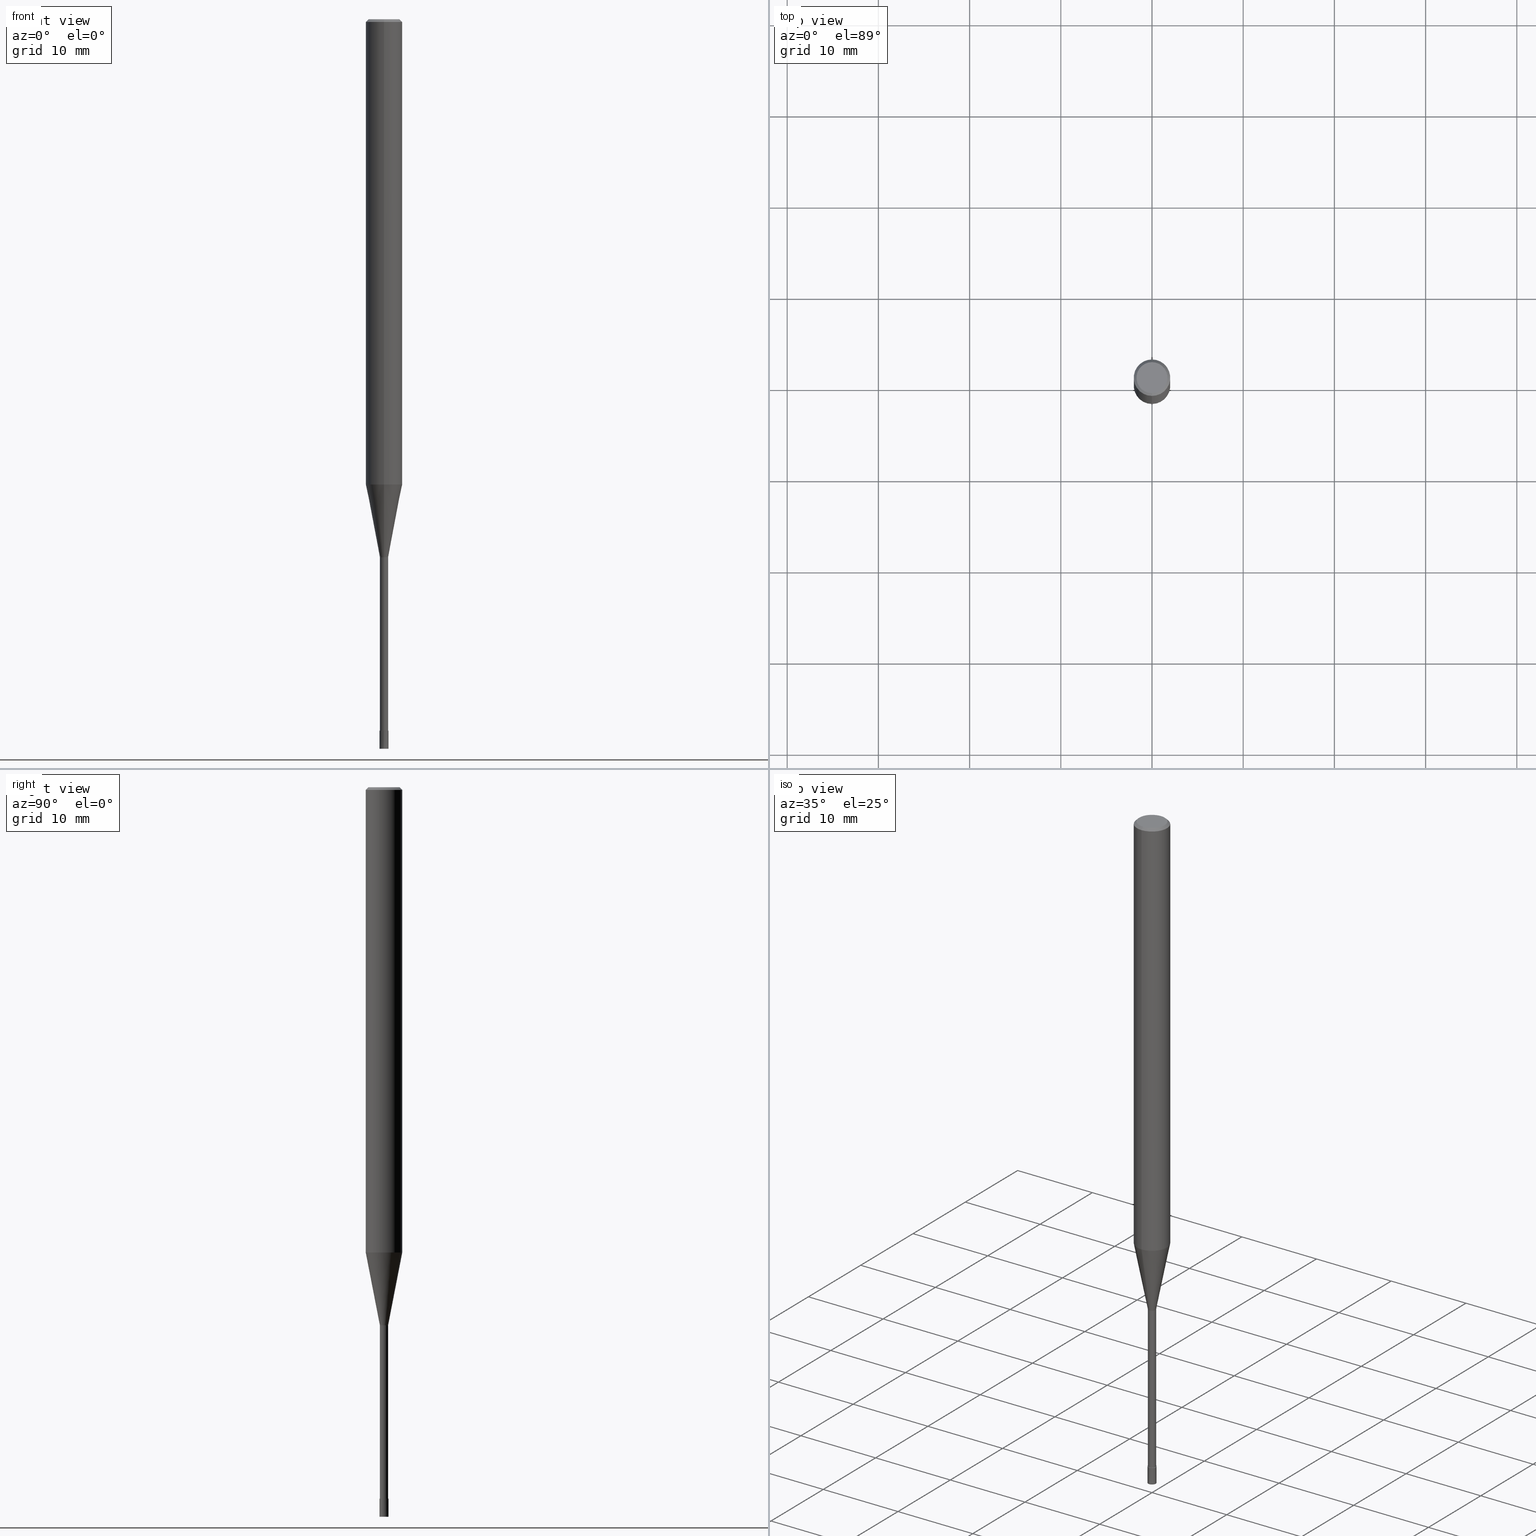
[diagram: canonical four-view strip — front | top / right | iso, engineering-drawing reading convention]
A machine part, canonical four-view strip (front | top / right | iso — engineering-drawing reading convention). The complete STEP part file that produces these views, byte-faithful:
ISO-10303-21;
HEADER;
FILE_DESCRIPTION(('no description'),'unknown implementation level');
FILE_NAME('CPRL2010-21-Huellk.stp','  ',('CIMSOURCE GmbH'),('CADClick - KiM GmbH - www.kimweb.de'),'unknown preprocess','ACIS','unknown authorization');
FILE_SCHEMA(('automotive_design'));
ENDSEC;
DATA;
#1=MECHANICAL_DESIGN_GEOMETRIC_PRESENTATION_REPRESENTATION(' ',(#14,#15,#16,#17,#18,#19,#20,#21,#22,#23,#24,#25,#26,#27,#28,#29,#30,#31,#32,#33,#34,#35,#36,#37,#38,#39,#40,#41,#42,#43,#44,#45,#46,#47,#48,#49,#50,#51,#52,#53,#54,#55,#56,#57,#58,#59,#60,#61,#62,#63,#64,#65,#66,#67,#68,#69,#70,#71,#72),#10);
#2=PRODUCT_DEFINITION_CONTEXT('',#73,'design');
#3=APPLICATION_PROTOCOL_DEFINITION('INTERNATIONAL STANDARD','automotive_design',1994,#73);
#4=PRODUCT_CATEGORY_RELATIONSHIP('NONE','NONE',#74,#75);
#5=SHAPE_DEFINITION_REPRESENTATION(#76,#77);
#6=PRODUCT_DEFINITION_CONTEXT('',#78,'design');
#7=APPLICATION_PROTOCOL_DEFINITION('INTERNATIONAL STANDARD','automotive_design',1994,#78);
#8=PRODUCT_CATEGORY_RELATIONSHIP('NONE','NONE',#79,#80);
#9=SHAPE_DEFINITION_REPRESENTATION(#81,#82);
#10= (GEOMETRIC_REPRESENTATION_CONTEXT(3)GLOBAL_UNCERTAINTY_ASSIGNED_CONTEXT((#85))GLOBAL_UNIT_ASSIGNED_CONTEXT((#87,#88,#89))REPRESENTATION_CONTEXT('NONE','WORKSPACE'));
#14=STYLED_ITEM('',(#91),#92);
#15=STYLED_ITEM('',(#93),#94);
#16=STYLED_ITEM('',(#95),#96);
#17=STYLED_ITEM('',(#97),#98);
#18=STYLED_ITEM('',(#99),#100);
#19=STYLED_ITEM('',(#101),#102);
#20=STYLED_ITEM('',(#103),#104);
#21=STYLED_ITEM('',(#105),#106);
#22=STYLED_ITEM('',(#107),#108);
#23=STYLED_ITEM('',(#109),#110);
#24=STYLED_ITEM('',(#111),#112);
#25=STYLED_ITEM('',(#113),#114);
#26=STYLED_ITEM('',(#115),#116);
#27=STYLED_ITEM('',(#117),#118);
#28=STYLED_ITEM('',(#119),#120);
#29=STYLED_ITEM('',(#121),#122);
#30=STYLED_ITEM('',(#123),#124);
#31=STYLED_ITEM('',(#125),#126);
#32=STYLED_ITEM('',(#127),#128);
#33=STYLED_ITEM('',(#129),#130);
#34=STYLED_ITEM('',(#131),#132);
#35=STYLED_ITEM('',(#133),#134);
#36=STYLED_ITEM('',(#135),#136);
#37=STYLED_ITEM('',(#137),#138);
#38=STYLED_ITEM('',(#139),#140);
#39=STYLED_ITEM('',(#141),#142);
#40=STYLED_ITEM('',(#143),#144);
#41=STYLED_ITEM('',(#145),#146);
#42=STYLED_ITEM('',(#147),#148);
#43=STYLED_ITEM('',(#149),#150);
#44=STYLED_ITEM('',(#151),#152);
#45=STYLED_ITEM('',(#153),#154);
#46=STYLED_ITEM('',(#155),#156);
#47=STYLED_ITEM('',(#157),#158);
#48=STYLED_ITEM('',(#159),#160);
#49=STYLED_ITEM('',(#161),#162);
#50=STYLED_ITEM('',(#163),#164);
#51=STYLED_ITEM('',(#165),#166);
#52=STYLED_ITEM('',(#167),#168);
#53=STYLED_ITEM('',(#169),#170);
#54=STYLED_ITEM('',(#171),#172);
#55=STYLED_ITEM('',(#173),#174);
#56=STYLED_ITEM('',(#175),#176);
#57=STYLED_ITEM('',(#177),#178);
#58=STYLED_ITEM('',(#179),#180);
#59=STYLED_ITEM('',(#181),#182);
#60=STYLED_ITEM('',(#183),#184);
#61=STYLED_ITEM('',(#185),#186);
#62=STYLED_ITEM('',(#187),#188);
#63=STYLED_ITEM('',(#189),#190);
#64=STYLED_ITEM('',(#191),#192);
#65=STYLED_ITEM('',(#193),#194);
#66=STYLED_ITEM('',(#195),#196);
#67=STYLED_ITEM('',(#197),#198);
#68=STYLED_ITEM('',(#199),#200);
#69=STYLED_ITEM('',(#201),#202);
#70=STYLED_ITEM('',(#203),#204);
#71=STYLED_ITEM('',(#205),#206);
#72=STYLED_ITEM('',(#207),#208);
#73=APPLICATION_CONTEXT(' ');
#74=PRODUCT_CATEGORY('part','NONE');
#75=PRODUCT_RELATED_PRODUCT_CATEGORY('detail',' ',(#209));
#76=PRODUCT_DEFINITION_SHAPE('NONE','NONE',#210);
#77=ADVANCED_BREP_SHAPE_REPRESENTATION('1',(#106,#211),#10);
#78=APPLICATION_CONTEXT(' ');
#79=PRODUCT_CATEGORY('part','NONE');
#80=PRODUCT_RELATED_PRODUCT_CATEGORY('detail',' ',(#212));
#81=PRODUCT_DEFINITION_SHAPE('NONE','NONE',#213);
#82=ADVANCED_BREP_SHAPE_REPRESENTATION('2',(#184,#214),#10);
#85=UNCERTAINTY_MEASURE_WITH_UNIT(LENGTH_MEASURE(1.0E-006),#87,'','');
#87= (CONVERSION_BASED_UNIT('MILLIMETRE',#217)LENGTH_UNIT()NAMED_UNIT(#220));
#88= (NAMED_UNIT(#222)PLANE_ANGLE_UNIT()SI_UNIT($,.RADIAN.));
#89= (NAMED_UNIT(#222)SOLID_ANGLE_UNIT()SI_UNIT($,.STERADIAN.));
#91=PRESENTATION_STYLE_ASSIGNMENT((#228));
#92=VERTEX_POINT('',#229);
#93=PRESENTATION_STYLE_ASSIGNMENT((#230));
#94=EDGE_CURVE('',#198,#162,#231,.T.);
#95=PRESENTATION_STYLE_ASSIGNMENT((#232));
#96=VERTEX_POINT('',#233);
#97=PRESENTATION_STYLE_ASSIGNMENT((#234));
#98=EDGE_CURVE('',#102,#164,#235,.T.);
#99=PRESENTATION_STYLE_ASSIGNMENT((#236));
#100=VERTEX_POINT('',#237);
#101=PRESENTATION_STYLE_ASSIGNMENT((#238));
#102=VERTEX_POINT('',#239);
#103=PRESENTATION_STYLE_ASSIGNMENT((#240));
#104=ADVANCED_FACE('',(#241),#242,.T.);
#105=PRESENTATION_STYLE_ASSIGNMENT((#243));
#106=MANIFOLD_SOLID_BREP('1',#244);
#107=PRESENTATION_STYLE_ASSIGNMENT((#245));
#108=ADVANCED_FACE('',(#246),#247,.T.);
#109=PRESENTATION_STYLE_ASSIGNMENT((#248));
#110=EDGE_CURVE('',#152,#182,#249,.T.);
#111=PRESENTATION_STYLE_ASSIGNMENT((#250));
#112=EDGE_CURVE('',#96,#152,#251,.T.);
#113=PRESENTATION_STYLE_ASSIGNMENT((#252));
#114=VERTEX_POINT('',#253);
#115=PRESENTATION_STYLE_ASSIGNMENT((#254));
#116=EDGE_CURVE('',#100,#198,#255,.T.);
#117=PRESENTATION_STYLE_ASSIGNMENT((#256));
#118=EDGE_CURVE('',#192,#114,#257,.T.);
#119=PRESENTATION_STYLE_ASSIGNMENT((#258));
#120=ADVANCED_FACE('',(#259),#260,.T.);
#121=PRESENTATION_STYLE_ASSIGNMENT((#261));
#122=EDGE_CURVE('',#114,#200,#262,.T.);
#123=PRESENTATION_STYLE_ASSIGNMENT((#263));
#124=EDGE_CURVE('',#164,#138,#264,.T.);
#125=PRESENTATION_STYLE_ASSIGNMENT((#265));
#126=VERTEX_POINT('',#266);
#127=PRESENTATION_STYLE_ASSIGNMENT((#267));
#128=EDGE_CURVE('',#200,#92,#268,.T.);
#129=PRESENTATION_STYLE_ASSIGNMENT((#269));
#130=EDGE_CURVE('',#164,#102,#270,.T.);
#131=PRESENTATION_STYLE_ASSIGNMENT((#271));
#132=ADVANCED_FACE('',(#272),#273,.T.);
#133=PRESENTATION_STYLE_ASSIGNMENT((#274));
#134=EDGE_CURVE('',#192,#92,#275,.T.);
#135=PRESENTATION_STYLE_ASSIGNMENT((#276));
#136=EDGE_CURVE('',#182,#138,#277,.T.);
#137=PRESENTATION_STYLE_ASSIGNMENT((#278));
#138=VERTEX_POINT('',#279);
#139=PRESENTATION_STYLE_ASSIGNMENT((#280));
#140=ADVANCED_FACE('',(#281),#282,.T.);
#141=PRESENTATION_STYLE_ASSIGNMENT((#283));
#142=ADVANCED_FACE('',(#284),#285,.T.);
#143=PRESENTATION_STYLE_ASSIGNMENT((#286));
#144=EDGE_CURVE('',#100,#126,#287,.T.);
#145=PRESENTATION_STYLE_ASSIGNMENT((#288));
#146=VERTEX_POINT('',#289);
#147=PRESENTATION_STYLE_ASSIGNMENT((#290));
#148=EDGE_CURVE('',#138,#182,#291,.T.);
#149=PRESENTATION_STYLE_ASSIGNMENT((#292));
#150=ADVANCED_FACE('',(#293),#294,.T.);
#151=PRESENTATION_STYLE_ASSIGNMENT((#295));
#152=VERTEX_POINT('',#296);
#153=PRESENTATION_STYLE_ASSIGNMENT((#297));
#154=EDGE_CURVE('',#198,#146,#298,.T.);
#155=PRESENTATION_STYLE_ASSIGNMENT((#299));
#156=EDGE_CURVE('',#146,#198,#300,.T.);
#157=PRESENTATION_STYLE_ASSIGNMENT((#301));
#158=EDGE_CURVE('',#160,#146,#302,.T.);
#159=PRESENTATION_STYLE_ASSIGNMENT((#303));
#160=VERTEX_POINT('',#304);
#161=PRESENTATION_STYLE_ASSIGNMENT((#305));
#162=VERTEX_POINT('',#306);
#163=PRESENTATION_STYLE_ASSIGNMENT((#307));
#164=VERTEX_POINT('',#308);
#165=PRESENTATION_STYLE_ASSIGNMENT((#309));
#166=EDGE_CURVE('',#152,#96,#310,.T.);
#167=PRESENTATION_STYLE_ASSIGNMENT((#311));
#168=ADVANCED_FACE('',(#312),#313,.T.);
#169=PRESENTATION_STYLE_ASSIGNMENT((#314));
#170=ADVANCED_FACE('',(#315),#316,.T.);
#171=PRESENTATION_STYLE_ASSIGNMENT((#317));
#172=EDGE_CURVE('',#138,#96,#318,.T.);
#173=PRESENTATION_STYLE_ASSIGNMENT((#319));
#174=EDGE_CURVE('',#162,#160,#320,.T.);
#175=PRESENTATION_STYLE_ASSIGNMENT((#321));
#176=ADVANCED_FACE('',(#322),#323,.T.);
#177=PRESENTATION_STYLE_ASSIGNMENT((#324));
#178=ADVANCED_FACE('',(#325),#326,.T.);
#179=PRESENTATION_STYLE_ASSIGNMENT((#327));
#180=ADVANCED_FACE('',(#328),#329,.T.);
#181=PRESENTATION_STYLE_ASSIGNMENT((#330));
#182=VERTEX_POINT('',#331);
#183=PRESENTATION_STYLE_ASSIGNMENT((#332));
#184=MANIFOLD_SOLID_BREP('2',#333);
#185=PRESENTATION_STYLE_ASSIGNMENT((#334));
#186=EDGE_CURVE('',#146,#126,#335,.T.);
#187=PRESENTATION_STYLE_ASSIGNMENT((#336));
#188=EDGE_CURVE('',#92,#192,#337,.T.);
#189=PRESENTATION_STYLE_ASSIGNMENT((#338));
#190=EDGE_CURVE('',#200,#114,#339,.T.);
#191=PRESENTATION_STYLE_ASSIGNMENT((#340));
#192=VERTEX_POINT('',#341);
#193=PRESENTATION_STYLE_ASSIGNMENT((#342));
#194=EDGE_CURVE('',#126,#100,#343,.T.);
#195=PRESENTATION_STYLE_ASSIGNMENT((#344));
#196=EDGE_CURVE('',#182,#102,#345,.T.);
#197=PRESENTATION_STYLE_ASSIGNMENT((#346));
#198=VERTEX_POINT('',#347);
#199=PRESENTATION_STYLE_ASSIGNMENT((#348));
#200=VERTEX_POINT('',#349);
#201=PRESENTATION_STYLE_ASSIGNMENT((#350));
#202=ADVANCED_FACE('',(#351,#352),#353,.T.);
#203=PRESENTATION_STYLE_ASSIGNMENT((#354));
#204=EDGE_CURVE('',#160,#162,#355,.T.);
#205=PRESENTATION_STYLE_ASSIGNMENT((#356));
#206=ADVANCED_FACE('',(#357),#358,.T.);
#207=PRESENTATION_STYLE_ASSIGNMENT((#359));
#208=ADVANCED_FACE('',(#360),#361,.T.);
#209=PRODUCT('1','1','PART-1-DESC',(#362));
#210=PRODUCT_DEFINITION('NONE','NONE',#363,#2);
#211=AXIS2_PLACEMENT_3D('',#364,#365,#366);
#212=PRODUCT('2','2','PART-2-DESC',(#367));
#213=PRODUCT_DEFINITION('NONE','NONE',#368,#6);
#214=AXIS2_PLACEMENT_3D('',#369,#370,#371);
#217=LENGTH_MEASURE_WITH_UNIT(LENGTH_MEASURE(1.0),#372);
#220=DIMENSIONAL_EXPONENTS(1.0,0.0,0.0,0.0,0.0,0.0,0.0);
#222=DIMENSIONAL_EXPONENTS(0.0,0.0,0.0,0.0,0.0,0.0,0.0);
#228=POINT_STYLE(' ',#373,POSITIVE_LENGTH_MEASURE(1.0E-006),#374);
#229=CARTESIAN_POINT('',(6.12180716275807E-017,-0.4999,-78.0));
#230=CURVE_STYLE('',#375,POSITIVE_LENGTH_MEASURE(1.0E-006),#376);
#231=LINE('',#377,#378);
#232=POINT_STYLE(' ',#379,POSITIVE_LENGTH_MEASURE(1.0E-006),#380);
#233=CARTESIAN_POINT('',(2.08183080149804E-016,-1.7,0.0));
#234=CURVE_STYLE('',#381,POSITIVE_LENGTH_MEASURE(1.0E-006),#382);
#235=CIRCLE('',#383,2.0);
#236=POINT_STYLE(' ',#384,POSITIVE_LENGTH_MEASURE(1.0E-006),#385);
#237=CARTESIAN_POINT('',(5.51011628902379E-017,-0.44995,-78.0));
#238=POINT_STYLE(' ',#386,POSITIVE_LENGTH_MEASURE(1.0E-006),#387);
#239=CARTESIAN_POINT('',(0.0,2.0,-51.026));
#240=SURFACE_STYLE_USAGE(.BOTH.,#388);
#241=FACE_OUTER_BOUND('',#389,.T.);
#242=CYLINDRICAL_SURFACE('',#390,2.0);
#243=SURFACE_STYLE_USAGE(.BOTH.,#391);
#244=CLOSED_SHELL('',(#208,#178,#104,#176,#202,#120,#206,#180,#170,#140,#168));
#245=SURFACE_STYLE_USAGE(.BOTH.,#392);
#246=FACE_OUTER_BOUND('',#393,.T.);
#247=CONICAL_SURFACE('',#394,0.49995,4.99999999583278E-005);
#248=CURVE_STYLE('',#395,POSITIVE_LENGTH_MEASURE(1.0E-006),#396);
#249=LINE('',#397,#398);
#250=CURVE_STYLE('',#399,POSITIVE_LENGTH_MEASURE(1.0E-006),#400);
#251=CIRCLE('',#401,1.7);
#252=POINT_STYLE(' ',#402,POSITIVE_LENGTH_MEASURE(1.0E-006),#403);
#253=CARTESIAN_POINT('',(0.0,0.5,-80.0));
#254=CURVE_STYLE('',#404,POSITIVE_LENGTH_MEASURE(1.0E-006),#405);
#255=LINE('',#406,#407);
#256=CURVE_STYLE('',#408,POSITIVE_LENGTH_MEASURE(1.0E-006),#409);
#257=LINE('',#410,#411);
#258=SURFACE_STYLE_USAGE(.BOTH.,#412);
#259=FACE_OUTER_BOUND('',#413,.T.);
#260=PLANE('',#414);
#261=CURVE_STYLE('',#415,POSITIVE_LENGTH_MEASURE(1.0E-006),#416);
#262=CIRCLE('',#417,0.5);
#263=CURVE_STYLE('',#418,POSITIVE_LENGTH_MEASURE(1.0E-006),#419);
#264=LINE('',#420,#421);
#265=POINT_STYLE(' ',#422,POSITIVE_LENGTH_MEASURE(1.0E-006),#423);
#266=CARTESIAN_POINT('',(0.0,0.44995,-78.0));
#267=CURVE_STYLE('',#424,POSITIVE_LENGTH_MEASURE(1.0E-006),#425);
#268=LINE('',#426,#427);
#269=CURVE_STYLE('',#428,POSITIVE_LENGTH_MEASURE(1.0E-006),#429);
#270=CIRCLE('',#430,2.0);
#271=SURFACE_STYLE_USAGE(.BOTH.,#431);
#272=FACE_OUTER_BOUND('',#432,.T.);
#273=PLANE('',#433);
#274=CURVE_STYLE('',#434,POSITIVE_LENGTH_MEASURE(1.0E-006),#435);
#275=CIRCLE('',#436,0.4999);
#276=CURVE_STYLE('',#437,POSITIVE_LENGTH_MEASURE(1.0E-006),#438);
#277=CIRCLE('',#439,2.0);
#278=POINT_STYLE(' ',#440,POSITIVE_LENGTH_MEASURE(1.0E-006),#441);
#279=CARTESIAN_POINT('',(2.44921270764475E-016,-2.0,-0.299999999999997));
#280=SURFACE_STYLE_USAGE(.BOTH.,#442);
#281=FACE_OUTER_BOUND('',#443,.T.);
#282=CYLINDRICAL_SURFACE('',#444,0.44995);
#283=SURFACE_STYLE_USAGE(.BOTH.,#445);
#284=FACE_OUTER_BOUND('',#446,.T.);
#285=PLANE('',#447);
#286=CURVE_STYLE('',#448,POSITIVE_LENGTH_MEASURE(1.0E-006),#449);
#287=CIRCLE('',#450,0.44995);
#288=POINT_STYLE(' ',#451,POSITIVE_LENGTH_MEASURE(1.0E-006),#452);
#289=CARTESIAN_POINT('',(0.0,0.44995,-59.0));
#290=CURVE_STYLE('',#453,POSITIVE_LENGTH_MEASURE(1.0E-006),#454);
#291=CIRCLE('',#455,2.0);
#292=SURFACE_STYLE_USAGE(.BOTH.,#456);
#293=FACE_OUTER_BOUND('',#457,.T.);
#294=CONICAL_SURFACE('',#458,0.49995,4.99999999583278E-005);
#295=POINT_STYLE(' ',#459,POSITIVE_LENGTH_MEASURE(1.0E-006),#460);
#296=CARTESIAN_POINT('',(0.0,1.7,0.0));
#297=CURVE_STYLE('',#461,POSITIVE_LENGTH_MEASURE(1.0E-006),#462);
#298=CIRCLE('',#463,0.44995);
#299=CURVE_STYLE('',#464,POSITIVE_LENGTH_MEASURE(1.0E-006),#465);
#300=CIRCLE('',#466,0.44995);
#301=CURVE_STYLE('',#467,POSITIVE_LENGTH_MEASURE(1.0E-006),#468);
#302=LINE('',#469,#470);
#303=POINT_STYLE(' ',#471,POSITIVE_LENGTH_MEASURE(1.0E-006),#472);
#304=CARTESIAN_POINT('',(0.0,1.99995,-51.026));
#305=POINT_STYLE(' ',#473,POSITIVE_LENGTH_MEASURE(1.0E-006),#474);
#306=CARTESIAN_POINT('',(2.44915147732706E-016,-1.99995,-51.026));
#307=POINT_STYLE(' ',#475,POSITIVE_LENGTH_MEASURE(1.0E-006),#476);
#308=CARTESIAN_POINT('',(2.44921270764475E-016,-2.0,-51.026));
#309=CURVE_STYLE('',#477,POSITIVE_LENGTH_MEASURE(1.0E-006),#478);
#310=CIRCLE('',#479,1.7);
#311=SURFACE_STYLE_USAGE(.BOTH.,#480);
#312=FACE_OUTER_BOUND('',#481,.T.);
#313=PLANE('',#482);
#314=SURFACE_STYLE_USAGE(.BOTH.,#483);
#315=FACE_OUTER_BOUND('',#484,.T.);
#316=CONICAL_SURFACE('',#485,1.22495,0.191987597119561);
#317=CURVE_STYLE('',#486,POSITIVE_LENGTH_MEASURE(1.0E-006),#487);
#318=LINE('',#488,#489);
#319=CURVE_STYLE('',#490,POSITIVE_LENGTH_MEASURE(1.0E-006),#491);
#320=CIRCLE('',#492,1.99995);
#321=SURFACE_STYLE_USAGE(.BOTH.,#493);
#322=FACE_OUTER_BOUND('',#494,.T.);
#323=CONICAL_SURFACE('',#495,1.85,0.785398163397453);
#324=SURFACE_STYLE_USAGE(.BOTH.,#496);
#325=FACE_OUTER_BOUND('',#497,.T.);
#326=CONICAL_SURFACE('',#498,1.22495,0.191987597119561);
#327=SURFACE_STYLE_USAGE(.BOTH.,#499);
#328=FACE_OUTER_BOUND('',#500,.T.);
#329=CYLINDRICAL_SURFACE('',#501,2.0);
#330=POINT_STYLE(' ',#502,POSITIVE_LENGTH_MEASURE(1.0E-006),#503);
#331=CARTESIAN_POINT('',(0.0,2.0,-0.299999999999997));
#332=SURFACE_STYLE_USAGE(.BOTH.,#504);
#333=CLOSED_SHELL('',(#150,#132,#108,#142));
#334=CURVE_STYLE('',#505,POSITIVE_LENGTH_MEASURE(1.0E-006),#506);
#335=LINE('',#507,#508);
#336=CURVE_STYLE('',#509,POSITIVE_LENGTH_MEASURE(1.0E-006),#510);
#337=CIRCLE('',#511,0.4999);
#338=CURVE_STYLE('',#512,POSITIVE_LENGTH_MEASURE(1.0E-006),#513);
#339=CIRCLE('',#514,0.5);
#340=POINT_STYLE(' ',#515,POSITIVE_LENGTH_MEASURE(1.0E-006),#516);
#341=CARTESIAN_POINT('',(0.0,0.4999,-78.0));
#342=CURVE_STYLE('',#517,POSITIVE_LENGTH_MEASURE(1.0E-006),#518);
#343=CIRCLE('',#519,0.44995);
#344=CURVE_STYLE('',#520,POSITIVE_LENGTH_MEASURE(1.0E-006),#521);
#345=LINE('',#522,#523);
#346=POINT_STYLE(' ',#524,POSITIVE_LENGTH_MEASURE(1.0E-006),#525);
#347=CARTESIAN_POINT('',(5.51011628902379E-017,-0.44995,-59.0));
#348=POINT_STYLE(' ',#526,POSITIVE_LENGTH_MEASURE(1.0E-006),#527);
#349=CARTESIAN_POINT('',(6.12303176911189E-017,-0.5,-80.0));
#350=SURFACE_STYLE_USAGE(.BOTH.,#528);
#351=FACE_OUTER_BOUND('',#529,.T.);
#352=FACE_BOUND('',#530,.T.);
#353=PLANE('',#531);
#354=CURVE_STYLE('',#532,POSITIVE_LENGTH_MEASURE(1.0E-006),#533);
#355=CIRCLE('',#534,1.99995);
#356=SURFACE_STYLE_USAGE(.BOTH.,#535);
#357=FACE_OUTER_BOUND('',#536,.T.);
#358=CONICAL_SURFACE('',#537,1.85,0.785398163397453);
#359=SURFACE_STYLE_USAGE(.BOTH.,#538);
#360=FACE_OUTER_BOUND('',#539,.T.);
#361=CYLINDRICAL_SURFACE('',#540,0.44995);
#362=PRODUCT_CONTEXT('',#73,'mechanical');
#363=PRODUCT_DEFINITION_FORMATION_WITH_SPECIFIED_SOURCE(' ','NONE',#209,.NOT_KNOWN.);
#364=CARTESIAN_POINT('',(0.0,0.0,0.0));
#365=DIRECTION('',(0.0,0.0,1.0));
#366=DIRECTION('',(1.0,0.0,0.0));
#367=PRODUCT_CONTEXT('',#78,'mechanical');
#368=PRODUCT_DEFINITION_FORMATION_WITH_SPECIFIED_SOURCE(' ','NONE',#212,.NOT_KNOWN.);
#369=CARTESIAN_POINT('',(0.0,0.0,0.0));
#370=DIRECTION('',(0.0,0.0,1.0));
#371=DIRECTION('',(1.0,0.0,0.0));
#372= (NAMED_UNIT(#220)LENGTH_UNIT()SI_UNIT(.MILLI.,.METRE.));
#373=PRE_DEFINED_MARKER('');
#374=COLOUR_RGB('',0.800000011920929,0.800000011920929,0.800000011920929);
#375=DRAUGHTING_PRE_DEFINED_CURVE_FONT('continuous');
#376=COLOUR_RGB('',0.498039215803146,0.498039215803146,0.498039215803146);
#377=CARTESIAN_POINT('',(1.50008155311472E-016,-1.22495,-55.013));
#378=VECTOR('',#542,1.0);
#379=PRE_DEFINED_MARKER('');
#380=COLOUR_RGB('',0.498039215803146,0.498039215803146,0.498039215803146);
#381=DRAUGHTING_PRE_DEFINED_CURVE_FONT('continuous');
#382=COLOUR_RGB('',0.498039215803146,0.498039215803146,0.498039215803146);
#383=AXIS2_PLACEMENT_3D('',#543,#544,#545);
#384=PRE_DEFINED_MARKER('');
#385=COLOUR_RGB('',0.498039215803146,0.498039215803146,0.498039215803146);
#386=PRE_DEFINED_MARKER('');
#387=COLOUR_RGB('',0.498039215803146,0.498039215803146,0.498039215803146);
#388=SURFACE_SIDE_STYLE('',(#546));
#389=EDGE_LOOP('',(#547,#548,#549,#550));
#390=AXIS2_PLACEMENT_3D('',#551,#552,#553);
#391=SURFACE_SIDE_STYLE('',(#554));
#392=SURFACE_SIDE_STYLE('',(#555));
#393=EDGE_LOOP('',(#556,#557,#558,#559));
#394=AXIS2_PLACEMENT_3D('',#560,#561,#562);
#395=DRAUGHTING_PRE_DEFINED_CURVE_FONT('continuous');
#396=COLOUR_RGB('',0.498039215803146,0.498039215803146,0.498039215803146);
#397=CARTESIAN_POINT('',(-2.2655217545714E-016,1.85,-0.149999999999999));
#398=VECTOR('',#563,1.0);
#399=DRAUGHTING_PRE_DEFINED_CURVE_FONT('continuous');
#400=COLOUR_RGB('',0.498039215803146,0.498039215803146,0.498039215803146);
#401=AXIS2_PLACEMENT_3D('',#564,#565,#566);
#402=PRE_DEFINED_MARKER('');
#403=COLOUR_RGB('',0.800000011920929,0.800000011920929,0.800000011920929);
#404=DRAUGHTING_PRE_DEFINED_CURVE_FONT('continuous');
#405=COLOUR_RGB('',0.498039215803146,0.498039215803146,0.498039215803146);
#406=CARTESIAN_POINT('',(5.51011628902379E-017,-0.44995,-68.5));
#407=VECTOR('',#567,1.0);
#408=DRAUGHTING_PRE_DEFINED_CURVE_FONT('continuous');
#409=COLOUR_RGB('',0.800000011920929,0.800000011920929,0.800000011920929);
#410=CARTESIAN_POINT('',(-6.12241946593498E-017,0.49995,-79.0));
#411=VECTOR('',#568,1.0);
#412=SURFACE_SIDE_STYLE('',(#569));
#413=EDGE_LOOP('',(#570,#571));
#414=AXIS2_PLACEMENT_3D('',#572,#573,#574);
#415=DRAUGHTING_PRE_DEFINED_CURVE_FONT('continuous');
#416=COLOUR_RGB('',0.800000011920929,0.800000011920929,0.800000011920929);
#417=AXIS2_PLACEMENT_3D('',#575,#576,#577);
#418=DRAUGHTING_PRE_DEFINED_CURVE_FONT('continuous');
#419=COLOUR_RGB('',0.498039215803146,0.498039215803146,0.498039215803146);
#420=CARTESIAN_POINT('',(2.44921270764475E-016,-2.0,-25.663));
#421=VECTOR('',#578,1.0);
#422=PRE_DEFINED_MARKER('');
#423=COLOUR_RGB('',0.498039215803146,0.498039215803146,0.498039215803146);
#424=DRAUGHTING_PRE_DEFINED_CURVE_FONT('continuous');
#425=COLOUR_RGB('',0.800000011920929,0.800000011920929,0.800000011920929);
#426=CARTESIAN_POINT('',(6.12241946593498E-017,-0.49995,-79.0));
#427=VECTOR('',#579,1.0);
#428=DRAUGHTING_PRE_DEFINED_CURVE_FONT('continuous');
#429=COLOUR_RGB('',0.498039215803146,0.498039215803146,0.498039215803146);
#430=AXIS2_PLACEMENT_3D('',#580,#581,#582);
#431=SURFACE_SIDE_STYLE('',(#583));
#432=EDGE_LOOP('',(#584,#585));
#433=AXIS2_PLACEMENT_3D('',#586,#587,#588);
#434=DRAUGHTING_PRE_DEFINED_CURVE_FONT('continuous');
#435=COLOUR_RGB('',0.800000011920929,0.800000011920929,0.800000011920929);
#436=AXIS2_PLACEMENT_3D('',#589,#590,#591);
#437=DRAUGHTING_PRE_DEFINED_CURVE_FONT('continuous');
#438=COLOUR_RGB('',0.498039215803146,0.498039215803146,0.498039215803146);
#439=AXIS2_PLACEMENT_3D('',#592,#593,#594);
#440=PRE_DEFINED_MARKER('');
#441=COLOUR_RGB('',0.498039215803146,0.498039215803146,0.498039215803146);
#442=SURFACE_SIDE_STYLE('',(#595));
#443=EDGE_LOOP('',(#596,#597,#598,#599));
#444=AXIS2_PLACEMENT_3D('',#600,#601,#602);
#445=SURFACE_SIDE_STYLE('',(#603));
#446=EDGE_LOOP('',(#604,#605));
#447=AXIS2_PLACEMENT_3D('',#606,#607,#608);
#448=DRAUGHTING_PRE_DEFINED_CURVE_FONT('continuous');
#449=COLOUR_RGB('',0.498039215803146,0.498039215803146,0.498039215803146);
#450=AXIS2_PLACEMENT_3D('',#609,#610,#611);
#451=PRE_DEFINED_MARKER('');
#452=COLOUR_RGB('',0.498039215803146,0.498039215803146,0.498039215803146);
#453=DRAUGHTING_PRE_DEFINED_CURVE_FONT('continuous');
#454=COLOUR_RGB('',0.498039215803146,0.498039215803146,0.498039215803146);
#455=AXIS2_PLACEMENT_3D('',#612,#613,#614);
#456=SURFACE_SIDE_STYLE('',(#615));
#457=EDGE_LOOP('',(#616,#617,#618,#619));
#458=AXIS2_PLACEMENT_3D('',#620,#621,#622);
#459=PRE_DEFINED_MARKER('');
#460=COLOUR_RGB('',0.498039215803146,0.498039215803146,0.498039215803146);
#461=DRAUGHTING_PRE_DEFINED_CURVE_FONT('continuous');
#462=COLOUR_RGB('',0.498039215803146,0.498039215803146,0.498039215803146);
#463=AXIS2_PLACEMENT_3D('',#623,#624,#625);
#464=DRAUGHTING_PRE_DEFINED_CURVE_FONT('continuous');
#465=COLOUR_RGB('',0.498039215803146,0.498039215803146,0.498039215803146);
#466=AXIS2_PLACEMENT_3D('',#626,#627,#628);
#467=DRAUGHTING_PRE_DEFINED_CURVE_FONT('continuous');
#468=COLOUR_RGB('',0.498039215803146,0.498039215803146,0.498039215803146);
#469=CARTESIAN_POINT('',(-1.50008155311472E-016,1.22495,-55.013));
#470=VECTOR('',#629,1.0);
#471=PRE_DEFINED_MARKER('');
#472=COLOUR_RGB('',0.498039215803146,0.498039215803146,0.498039215803146);
#473=PRE_DEFINED_MARKER('');
#474=COLOUR_RGB('',0.498039215803146,0.498039215803146,0.498039215803146);
#475=PRE_DEFINED_MARKER('');
#476=COLOUR_RGB('',0.498039215803146,0.498039215803146,0.498039215803146);
#477=DRAUGHTING_PRE_DEFINED_CURVE_FONT('continuous');
#478=COLOUR_RGB('',0.498039215803146,0.498039215803146,0.498039215803146);
#479=AXIS2_PLACEMENT_3D('',#630,#631,#632);
#480=SURFACE_SIDE_STYLE('',(#633));
#481=EDGE_LOOP('',(#634,#635));
#482=AXIS2_PLACEMENT_3D('',#636,#637,#638);
#483=SURFACE_SIDE_STYLE('',(#639));
#484=EDGE_LOOP('',(#640,#641,#642,#643));
#485=AXIS2_PLACEMENT_3D('',#644,#645,#646);
#486=DRAUGHTING_PRE_DEFINED_CURVE_FONT('continuous');
#487=COLOUR_RGB('',0.498039215803146,0.498039215803146,0.498039215803146);
#488=CARTESIAN_POINT('',(2.2655217545714E-016,-1.85,-0.149999999999999));
#489=VECTOR('',#647,1.0);
#490=DRAUGHTING_PRE_DEFINED_CURVE_FONT('continuous');
#491=COLOUR_RGB('',0.498039215803146,0.498039215803146,0.498039215803146);
#492=AXIS2_PLACEMENT_3D('',#648,#649,#650);
#493=SURFACE_SIDE_STYLE('',(#651));
#494=EDGE_LOOP('',(#652,#653,#654,#655));
#495=AXIS2_PLACEMENT_3D('',#656,#657,#658);
#496=SURFACE_SIDE_STYLE('',(#659));
#497=EDGE_LOOP('',(#660,#661,#662,#663));
#498=AXIS2_PLACEMENT_3D('',#664,#665,#666);
#499=SURFACE_SIDE_STYLE('',(#667));
#500=EDGE_LOOP('',(#668,#669,#670,#671));
#501=AXIS2_PLACEMENT_3D('',#672,#673,#674);
#502=PRE_DEFINED_MARKER('');
#503=COLOUR_RGB('',0.498039215803146,0.498039215803146,0.498039215803146);
#504=SURFACE_SIDE_STYLE('',(#675));
#505=DRAUGHTING_PRE_DEFINED_CURVE_FONT('continuous');
#506=COLOUR_RGB('',0.498039215803146,0.498039215803146,0.498039215803146);
#507=CARTESIAN_POINT('',(-5.51011628902379E-017,0.44995,-68.5));
#508=VECTOR('',#676,1.0);
#509=DRAUGHTING_PRE_DEFINED_CURVE_FONT('continuous');
#510=COLOUR_RGB('',0.800000011920929,0.800000011920929,0.800000011920929);
#511=AXIS2_PLACEMENT_3D('',#677,#678,#679);
#512=DRAUGHTING_PRE_DEFINED_CURVE_FONT('continuous');
#513=COLOUR_RGB('',0.800000011920929,0.800000011920929,0.800000011920929);
#514=AXIS2_PLACEMENT_3D('',#680,#681,#682);
#515=PRE_DEFINED_MARKER('');
#516=COLOUR_RGB('',0.800000011920929,0.800000011920929,0.800000011920929);
#517=DRAUGHTING_PRE_DEFINED_CURVE_FONT('continuous');
#518=COLOUR_RGB('',0.498039215803146,0.498039215803146,0.498039215803146);
#519=AXIS2_PLACEMENT_3D('',#683,#684,#685);
#520=DRAUGHTING_PRE_DEFINED_CURVE_FONT('continuous');
#521=COLOUR_RGB('',0.498039215803146,0.498039215803146,0.498039215803146);
#522=CARTESIAN_POINT('',(-2.44921270764475E-016,2.0,-25.663));
#523=VECTOR('',#686,1.0);
#524=PRE_DEFINED_MARKER('');
#525=COLOUR_RGB('',0.498039215803146,0.498039215803146,0.498039215803146);
#526=PRE_DEFINED_MARKER('');
#527=COLOUR_RGB('',0.800000011920929,0.800000011920929,0.800000011920929);
#528=SURFACE_SIDE_STYLE('',(#687));
#529=EDGE_LOOP('',(#688,#689));
#530=EDGE_LOOP('',(#690,#691));
#531=AXIS2_PLACEMENT_3D('',#692,#693,#694);
#532=DRAUGHTING_PRE_DEFINED_CURVE_FONT('continuous');
#533=COLOUR_RGB('',0.498039215803146,0.498039215803146,0.498039215803146);
#534=AXIS2_PLACEMENT_3D('',#695,#696,#697);
#535=SURFACE_SIDE_STYLE('',(#698));
#536=EDGE_LOOP('',(#699,#700,#701,#702));
#537=AXIS2_PLACEMENT_3D('',#703,#704,#705);
#538=SURFACE_SIDE_STYLE('',(#706));
#539=EDGE_LOOP('',(#707,#708,#709,#710));
#540=AXIS2_PLACEMENT_3D('',#711,#712,#713);
#542=DIRECTION('',(2.33667566290819E-017,-0.190810349433081,0.981626920244767));
#543=CARTESIAN_POINT('',(0.0,0.0,-51.026));
#544=DIRECTION('',(0.0,0.0,-1.0));
#545=DIRECTION('',(0.0,1.0,0.0));
#546=SURFACE_STYLE_FILL_AREA(#714);
#547=ORIENTED_EDGE('',*,*,#196,.F.);
#548=ORIENTED_EDGE('',*,*,#136,.T.);
#549=ORIENTED_EDGE('',*,*,#124,.F.);
#550=ORIENTED_EDGE('',*,*,#98,.F.);
#551=CARTESIAN_POINT('',(0.0,0.0,-25.663));
#552=DIRECTION('',(-0.0,-0.0,1.0));
#553=DIRECTION('',(0.0,1.0,0.0));
#554=SURFACE_STYLE_FILL_AREA(#715);
#555=SURFACE_STYLE_FILL_AREA(#716);
#556=ORIENTED_EDGE('',*,*,#118,.T.);
#557=ORIENTED_EDGE('',*,*,#190,.F.);
#558=ORIENTED_EDGE('',*,*,#128,.T.);
#559=ORIENTED_EDGE('',*,*,#188,.T.);
#560=CARTESIAN_POINT('',(0.0,0.0,-79.0));
#561=DIRECTION('',(0.0,-0.0,-1.0));
#562=DIRECTION('',(0.0,1.0,0.0));
#563=DIRECTION('',(-8.6592745707194E-017,0.707106781186551,-0.707106781186544));
#564=CARTESIAN_POINT('',(0.0,0.0,0.0));
#565=DIRECTION('',(0.0,0.0,-1.0));
#566=DIRECTION('',(0.0,1.0,0.0));
#567=DIRECTION('',(-0.0,-0.0,1.0));
#568=DIRECTION('',(-6.12303176145742E-021,4.99999999374945E-005,-0.99999999875));
#569=SURFACE_STYLE_FILL_AREA(#717);
#570=ORIENTED_EDGE('',*,*,#166,.F.);
#571=ORIENTED_EDGE('',*,*,#112,.F.);
#572=CARTESIAN_POINT('',(0.0,0.85,0.0));
#573=DIRECTION('',(-0.0,0.0,1.0));
#574=DIRECTION('',(0.0,-1.0,0.0));
#575=CARTESIAN_POINT('',(0.0,0.0,-80.0));
#576=DIRECTION('',(0.0,0.0,-1.0));
#577=DIRECTION('',(0.0,1.0,0.0));
#578=DIRECTION('',(-0.0,-0.0,1.0));
#579=DIRECTION('',(-6.12303176145742E-021,4.99999999374945E-005,0.99999999875));
#580=CARTESIAN_POINT('',(0.0,0.0,-51.026));
#581=DIRECTION('',(0.0,0.0,-1.0));
#582=DIRECTION('',(0.0,1.0,0.0));
#583=SURFACE_STYLE_FILL_AREA(#718);
#584=ORIENTED_EDGE('',*,*,#134,.F.);
#585=ORIENTED_EDGE('',*,*,#188,.F.);
#586=CARTESIAN_POINT('',(0.0,0.24995,-78.0));
#587=DIRECTION('',(-0.0,0.0,1.0));
#588=DIRECTION('',(0.0,-1.0,0.0));
#589=CARTESIAN_POINT('',(0.0,0.0,-78.0));
#590=DIRECTION('',(0.0,0.0,-1.0));
#591=DIRECTION('',(0.0,1.0,0.0));
#592=CARTESIAN_POINT('',(0.0,0.0,-0.299999999999997));
#593=DIRECTION('',(0.0,0.0,-1.0));
#594=DIRECTION('',(0.0,1.0,0.0));
#595=SURFACE_STYLE_FILL_AREA(#719);
#596=ORIENTED_EDGE('',*,*,#186,.T.);
#597=ORIENTED_EDGE('',*,*,#144,.F.);
#598=ORIENTED_EDGE('',*,*,#116,.T.);
#599=ORIENTED_EDGE('',*,*,#154,.T.);
#600=CARTESIAN_POINT('',(0.0,0.0,-68.5));
#601=DIRECTION('',(-0.0,-0.0,1.0));
#602=DIRECTION('',(0.0,1.0,0.0));
#603=SURFACE_STYLE_FILL_AREA(#720);
#604=ORIENTED_EDGE('',*,*,#122,.T.);
#605=ORIENTED_EDGE('',*,*,#190,.T.);
#606=CARTESIAN_POINT('',(0.0,0.2475,-80.0));
#607=DIRECTION('',(0.0,0.0,-1.0));
#608=DIRECTION('',(0.0,1.0,0.0));
#609=CARTESIAN_POINT('',(0.0,0.0,-78.0));
#610=DIRECTION('',(0.0,0.0,-1.0));
#611=DIRECTION('',(0.0,1.0,0.0));
#612=CARTESIAN_POINT('',(0.0,0.0,-0.299999999999997));
#613=DIRECTION('',(0.0,0.0,-1.0));
#614=DIRECTION('',(0.0,1.0,0.0));
#615=SURFACE_STYLE_FILL_AREA(#721);
#616=ORIENTED_EDGE('',*,*,#118,.F.);
#617=ORIENTED_EDGE('',*,*,#134,.T.);
#618=ORIENTED_EDGE('',*,*,#128,.F.);
#619=ORIENTED_EDGE('',*,*,#122,.F.);
#620=CARTESIAN_POINT('',(0.0,0.0,-79.0));
#621=DIRECTION('',(0.0,-0.0,-1.0));
#622=DIRECTION('',(0.0,1.0,0.0));
#623=CARTESIAN_POINT('',(0.0,0.0,-59.0));
#624=DIRECTION('',(0.0,0.0,-1.0));
#625=DIRECTION('',(0.0,1.0,0.0));
#626=CARTESIAN_POINT('',(0.0,0.0,-59.0));
#627=DIRECTION('',(0.0,0.0,-1.0));
#628=DIRECTION('',(0.0,1.0,0.0));
#629=DIRECTION('',(2.33667566290819E-017,-0.190810349433081,-0.981626920244767));
#630=CARTESIAN_POINT('',(0.0,0.0,0.0));
#631=DIRECTION('',(0.0,0.0,-1.0));
#632=DIRECTION('',(0.0,1.0,0.0));
#633=SURFACE_STYLE_FILL_AREA(#722);
#634=ORIENTED_EDGE('',*,*,#194,.T.);
#635=ORIENTED_EDGE('',*,*,#144,.T.);
#636=CARTESIAN_POINT('',(0.0,0.224975,-78.0));
#637=DIRECTION('',(0.0,0.0,-1.0));
#638=DIRECTION('',(0.0,1.0,0.0));
#639=SURFACE_STYLE_FILL_AREA(#723);
#640=ORIENTED_EDGE('',*,*,#158,.T.);
#641=ORIENTED_EDGE('',*,*,#154,.F.);
#642=ORIENTED_EDGE('',*,*,#94,.T.);
#643=ORIENTED_EDGE('',*,*,#174,.T.);
#644=CARTESIAN_POINT('',(0.0,0.0,-55.013));
#645=DIRECTION('',(-0.0,-0.0,1.0));
#646=DIRECTION('',(0.0,1.0,0.0));
#647=DIRECTION('',(-8.6592745707194E-017,0.707106781186551,0.707106781186544));
#648=CARTESIAN_POINT('',(0.0,0.0,-51.026));
#649=DIRECTION('',(0.0,0.0,-1.0));
#650=DIRECTION('',(0.0,1.0,0.0));
#651=SURFACE_STYLE_FILL_AREA(#724);
#652=ORIENTED_EDGE('',*,*,#110,.F.);
#653=ORIENTED_EDGE('',*,*,#166,.T.);
#654=ORIENTED_EDGE('',*,*,#172,.F.);
#655=ORIENTED_EDGE('',*,*,#136,.F.);
#656=CARTESIAN_POINT('',(0.0,0.0,-0.149999999999999));
#657=DIRECTION('',(0.0,-0.0,-1.0));
#658=DIRECTION('',(0.0,1.0,0.0));
#659=SURFACE_STYLE_FILL_AREA(#725);
#660=ORIENTED_EDGE('',*,*,#158,.F.);
#661=ORIENTED_EDGE('',*,*,#204,.T.);
#662=ORIENTED_EDGE('',*,*,#94,.F.);
#663=ORIENTED_EDGE('',*,*,#156,.F.);
#664=CARTESIAN_POINT('',(0.0,0.0,-55.013));
#665=DIRECTION('',(-0.0,-0.0,1.0));
#666=DIRECTION('',(0.0,1.0,0.0));
#667=SURFACE_STYLE_FILL_AREA(#726);
#668=ORIENTED_EDGE('',*,*,#196,.T.);
#669=ORIENTED_EDGE('',*,*,#130,.F.);
#670=ORIENTED_EDGE('',*,*,#124,.T.);
#671=ORIENTED_EDGE('',*,*,#148,.T.);
#672=CARTESIAN_POINT('',(0.0,0.0,-25.663));
#673=DIRECTION('',(-0.0,-0.0,1.0));
#674=DIRECTION('',(0.0,1.0,0.0));
#675=SURFACE_STYLE_FILL_AREA(#727);
#676=DIRECTION('',(0.0,0.0,-1.0));
#677=CARTESIAN_POINT('',(0.0,0.0,-78.0));
#678=DIRECTION('',(0.0,0.0,-1.0));
#679=DIRECTION('',(0.0,1.0,0.0));
#680=CARTESIAN_POINT('',(0.0,0.0,-80.0));
#681=DIRECTION('',(0.0,0.0,-1.0));
#682=DIRECTION('',(0.0,1.0,0.0));
#683=CARTESIAN_POINT('',(0.0,0.0,-78.0));
#684=DIRECTION('',(0.0,0.0,-1.0));
#685=DIRECTION('',(0.0,1.0,0.0));
#686=DIRECTION('',(0.0,0.0,-1.0));
#687=SURFACE_STYLE_FILL_AREA(#728);
#688=ORIENTED_EDGE('',*,*,#98,.T.);
#689=ORIENTED_EDGE('',*,*,#130,.T.);
#690=ORIENTED_EDGE('',*,*,#204,.F.);
#691=ORIENTED_EDGE('',*,*,#174,.F.);
#692=CARTESIAN_POINT('',(0.0,1.0,-51.026));
#693=DIRECTION('',(0.0,0.0,-1.0));
#694=DIRECTION('',(0.0,1.0,0.0));
#695=CARTESIAN_POINT('',(0.0,0.0,-51.026));
#696=DIRECTION('',(0.0,0.0,-1.0));
#697=DIRECTION('',(0.0,1.0,0.0));
#698=SURFACE_STYLE_FILL_AREA(#729);
#699=ORIENTED_EDGE('',*,*,#110,.T.);
#700=ORIENTED_EDGE('',*,*,#148,.F.);
#701=ORIENTED_EDGE('',*,*,#172,.T.);
#702=ORIENTED_EDGE('',*,*,#112,.T.);
#703=CARTESIAN_POINT('',(0.0,0.0,-0.149999999999999));
#704=DIRECTION('',(0.0,-0.0,-1.0));
#705=DIRECTION('',(0.0,1.0,0.0));
#706=SURFACE_STYLE_FILL_AREA(#730);
#707=ORIENTED_EDGE('',*,*,#186,.F.);
#708=ORIENTED_EDGE('',*,*,#156,.T.);
#709=ORIENTED_EDGE('',*,*,#116,.F.);
#710=ORIENTED_EDGE('',*,*,#194,.F.);
#711=CARTESIAN_POINT('',(0.0,0.0,-68.5));
#712=DIRECTION('',(-0.0,-0.0,1.0));
#713=DIRECTION('',(0.0,1.0,0.0));
#714=FILL_AREA_STYLE('',(#731));
#715=FILL_AREA_STYLE('',(#732));
#716=FILL_AREA_STYLE('',(#733));
#717=FILL_AREA_STYLE('',(#734));
#718=FILL_AREA_STYLE('',(#735));
#719=FILL_AREA_STYLE('',(#736));
#720=FILL_AREA_STYLE('',(#737));
#721=FILL_AREA_STYLE('',(#738));
#722=FILL_AREA_STYLE('',(#739));
#723=FILL_AREA_STYLE('',(#740));
#724=FILL_AREA_STYLE('',(#741));
#725=FILL_AREA_STYLE('',(#742));
#726=FILL_AREA_STYLE('',(#743));
#727=FILL_AREA_STYLE('',(#744));
#728=FILL_AREA_STYLE('',(#745));
#729=FILL_AREA_STYLE('',(#746));
#730=FILL_AREA_STYLE('',(#747));
#731=FILL_AREA_STYLE_COLOUR('',#748);
#732=FILL_AREA_STYLE_COLOUR('',#749);
#733=FILL_AREA_STYLE_COLOUR('',#750);
#734=FILL_AREA_STYLE_COLOUR('',#751);
#735=FILL_AREA_STYLE_COLOUR('',#752);
#736=FILL_AREA_STYLE_COLOUR('',#753);
#737=FILL_AREA_STYLE_COLOUR('',#754);
#738=FILL_AREA_STYLE_COLOUR('',#755);
#739=FILL_AREA_STYLE_COLOUR('',#756);
#740=FILL_AREA_STYLE_COLOUR('',#757);
#741=FILL_AREA_STYLE_COLOUR('',#758);
#742=FILL_AREA_STYLE_COLOUR('',#759);
#743=FILL_AREA_STYLE_COLOUR('',#760);
#744=FILL_AREA_STYLE_COLOUR('',#761);
#745=FILL_AREA_STYLE_COLOUR('',#762);
#746=FILL_AREA_STYLE_COLOUR('',#763);
#747=FILL_AREA_STYLE_COLOUR('',#764);
#748=COLOUR_RGB('',0.498039215803146,0.498039215803146,0.498039215803146);
#749=COLOUR_RGB('',0.498039215803146,0.498039215803146,0.498039215803146);
#750=COLOUR_RGB('',0.800000011920929,0.800000011920929,0.800000011920929);
#751=COLOUR_RGB('',0.498039215803146,0.498039215803146,0.498039215803146);
#752=COLOUR_RGB('',0.800000011920929,0.800000011920929,0.800000011920929);
#753=COLOUR_RGB('',0.498039215803146,0.498039215803146,0.498039215803146);
#754=COLOUR_RGB('',0.800000011920929,0.800000011920929,0.800000011920929);
#755=COLOUR_RGB('',0.800000011920929,0.800000011920929,0.800000011920929);
#756=COLOUR_RGB('',0.498039215803146,0.498039215803146,0.498039215803146);
#757=COLOUR_RGB('',0.498039215803146,0.498039215803146,0.498039215803146);
#758=COLOUR_RGB('',0.498039215803146,0.498039215803146,0.498039215803146);
#759=COLOUR_RGB('',0.498039215803146,0.498039215803146,0.498039215803146);
#760=COLOUR_RGB('',0.498039215803146,0.498039215803146,0.498039215803146);
#761=COLOUR_RGB('',0.800000011920929,0.800000011920929,0.800000011920929);
#762=COLOUR_RGB('',0.498039215803146,0.498039215803146,0.498039215803146);
#763=COLOUR_RGB('',0.498039215803146,0.498039215803146,0.498039215803146);
#764=COLOUR_RGB('',0.498039215803146,0.498039215803146,0.498039215803146);
#765=AXIS2_PLACEMENT_3D('PCS',#766,#767,#768);
#766=CARTESIAN_POINT('',(0.0,0.0,0.0));
#767=DIRECTION('',(0.0,0.0,1.0));
#768=DIRECTION('',(1.0,0.0,0.0));
#769=AXIS2_PLACEMENT_3D('CIP',#770,#771,#772);
#770=CARTESIAN_POINT('',(0.0,0.0,-80.0));
#771=DIRECTION('',(0.0,0.0,1.0));
#772=DIRECTION('',(1.0,0.0,0.0));
#773=AXIS2_PLACEMENT_3D('CRP',#774,#775,#776);
#774=CARTESIAN_POINT('',(-0.5,0.0,-80.0));
#775=DIRECTION('',(0.0,0.0,1.0));
#776=DIRECTION('',(1.0,0.0,0.0));
#777=AXIS2_PLACEMENT_3D('MCS',#778,#779,#780);
#778=CARTESIAN_POINT('',(0.0,0.0,-51.026));
#779=DIRECTION('',(0.0,0.0,1.0));
#780=DIRECTION('',(1.0,0.0,0.0));
#781=CONSTRUCTIVE_GEOMETRY_REPRESENTATION_RELATIONSHIP('coordinate systems',$,#77,#782);
#782=CONSTRUCTIVE_GEOMETRY_REPRESENTATION('coordinate systems',(#765,#769,#773,#777),#10);
ENDSEC;
END-ISO-10303-21;
